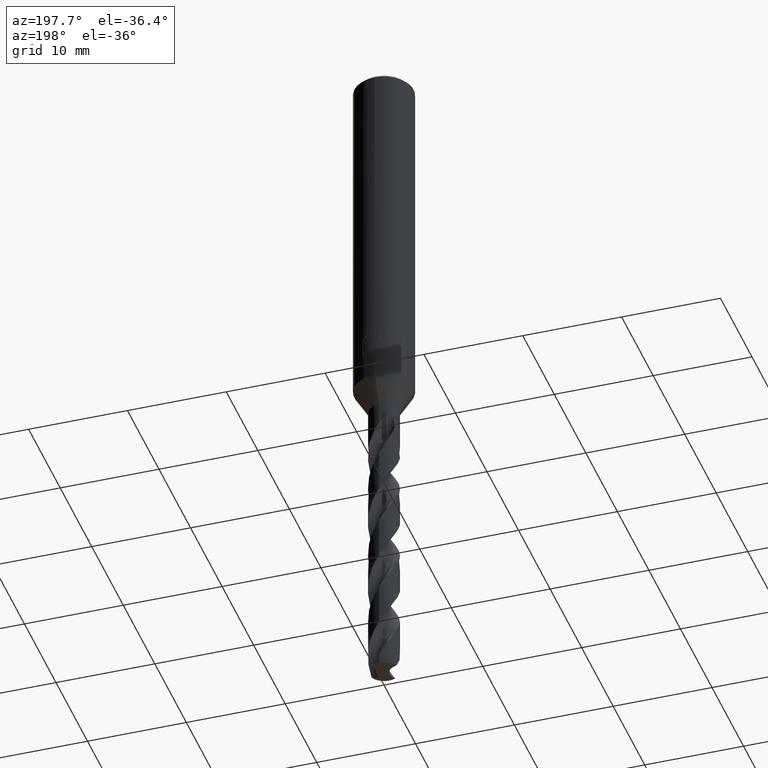
[diagram: clean part render]
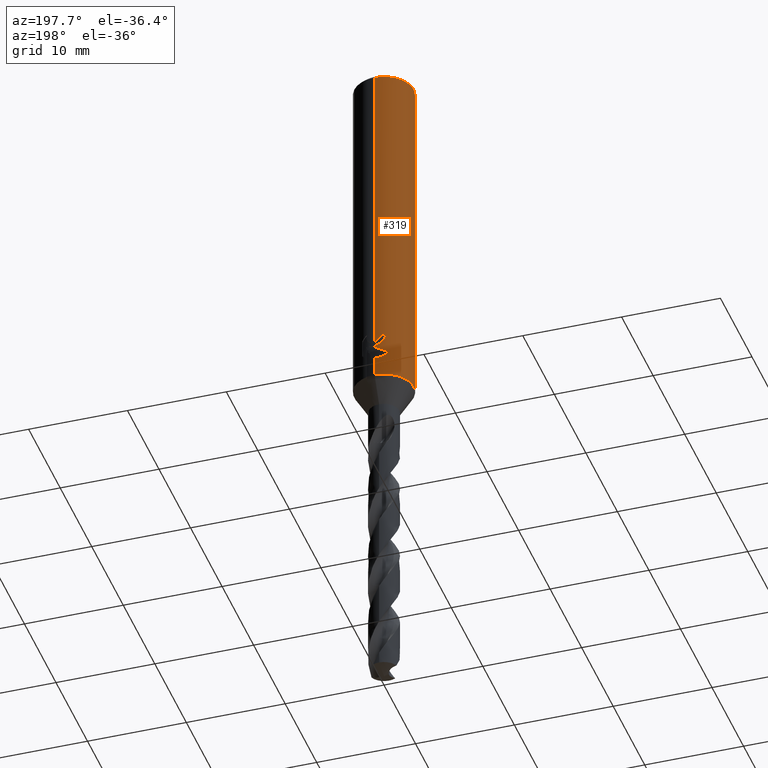
[diagram: same view with one face highlighted and labeled with its STEP entity id]
A machine part, auxiliary view. The second image highlights one B-rep face of the part: STEP entity #319.
In plain terms, the highlighted cylindrical surface (edge-blend (fillet) strip) has radius 3 mm, axis along (-0, -0, 1).
Its self-contained STEP definition (entity closure, byte-faithful):
#311=VERTEX_POINT('',#845);
#319=ADVANCED_FACE('',(#854),#855,.T.);
#325=VERTEX_POINT('',#861);
#333=EDGE_CURVE('',#357,#583,#869,.T.);
#357=VERTEX_POINT('',#896);
#381=EDGE_CURVE('',#617,#729,#922,.T.);
#397=VERTEX_POINT('',#941);
#401=EDGE_CURVE('',#607,#515,#945,.T.);
#439=VERTEX_POINT('',#987);
#465=EDGE_CURVE('',#311,#439,#1015,.T.);
#515=VERTEX_POINT('',#1070);
#521=EDGE_CURVE('',#439,#325,#1077,.T.);
#531=VERTEX_POINT('',#1089);
#551=EDGE_CURVE('',#397,#531,#1111,.T.);
#553=VERTEX_POINT('',#1113);
#583=VERTEX_POINT('',#1145);
#607=VERTEX_POINT('',#1170);
#611=EDGE_CURVE('',#397,#607,#1175,.T.);
#617=VERTEX_POINT('',#1181);
#639=EDGE_CURVE('',#729,#553,#1205,.T.);
#641=EDGE_CURVE('',#325,#531,#1207,.T.);
#663=EDGE_CURVE('',#583,#617,#1230,.T.);
#719=EDGE_CURVE('',#553,#311,#1289,.T.);
#721=EDGE_CURVE('',#515,#357,#1291,.T.);
#729=VERTEX_POINT('',#1300);
#845=CARTESIAN_POINT('',(-3.67366600472444E-016,3.0,-32.7128911336578));
#854=FACE_OUTER_BOUND('',#1610,.T.);
#855=CYLINDRICAL_SURFACE('',#1611,3.0);
#861=CARTESIAN_POINT('',(-2.46407913303377E-016,3.0,-34.0310253601033));
#869=B_SPLINE_CURVE_WITH_KNOTS('',3,(#1782,#1783,#1784,#1785,#1786,#1787,#1788,#1789,#1790,#1791,#1792,#1793,#1794,#1795,#1796,#1797,#1798,#1799,#1800,#1801,#1802,#1803,#1804,#1805,#1806,#1807,#1808),.UNSPECIFIED.,.F.,.F.,(4,2,3,2,2,2,2,2,2,2,2,2,4),(-0.54422824842136,-0.27211412421068,0.0,0.272114124210678,0.544228248421357,0.817906359646673,1.09158447087199,1.36255924571499,1.63353402055798,1.90530456554772,2.17707511053746,2.4488456555272,2.72061620051693),.UNSPECIFIED.);
#896=CARTESIAN_POINT('',(-1.20768269592175E-015,3.0,-32.0232688117743));
#922=CIRCLE('',#2190,3.0);
#941=CARTESIAN_POINT('',(3.67381906146713E-016,-3.0,-36.0));
#945=CIRCLE('',#2216,3.0);
#987=CARTESIAN_POINT('',(-1.337052752443,2.68557069115386,-33.3720803908795));
#1015=ELLIPSE('',#3927,3.34478529612858,3.0);
#1070=CARTESIAN_POINT('',(0.0,3.0,-0.399999999999999));
#1077=B_SPLINE_CURVE_WITH_KNOTS('',3,(#4434,#4435,#4436,#4437,#4438,#4439,#4440,#4441,#4442,#4443,#4444,#4445,#4446,#4447,#4448,#4449),.UNSPECIFIED.,.F.,.F.,(4,2,2,2,2,2,2,4),(5.66023402257373,6.29060333517104,6.60504483258975,6.91948633000846,7.23392782742717,7.54836932484587,7.86141901111221,8.17446869737855),.UNSPECIFIED.);
#1089=CARTESIAN_POINT('',(0.0,3.0,-36.0));
#1111=CIRCLE('',#4966,3.0);
#1113=CARTESIAN_POINT('',(-2.06254272401587E-016,3.0,-32.5000801551881));
#1145=CARTESIAN_POINT('',(-0.486378944383045,2.96031003823262,-31.6432837483006));
#1170=CARTESIAN_POINT('',(3.67381906146713E-016,-3.0,-0.399999999999999));
#1175=LINE('',#5583,#5584);
#1181=CARTESIAN_POINT('',(-0.562333990228013,2.94682549253162,-31.3171221986971));
#1205=B_SPLINE_CURVE_WITH_KNOTS('',3,(#5775,#5776,#5777,#5778,#5779,#5780,#5781,#5782,#5783,#5784,#5785,#5786,#5787,#5788),.UNSPECIFIED.,.F.,.F.,(4,2,2,2,2,2,4),(3.16026050654945,3.61086409539206,4.06146768423468,4.51207127307729,4.95991823802074,5.40776520296419,5.86282890530594),.UNSPECIFIED.);
#1207=LINE('',#5791,#5792);
#1230=B_SPLINE_CURVE_WITH_KNOTS('',3,(#5883,#5884,#5885,#5886,#5887,#5888,#5889,#5890,#5891,#5892,#5893,#5894,#5895,#5896,#5897,#5898,#5899,#5900,#5901,#5902,#5903,#5904,#5905,#5906,#5907,#5908,#5909),.UNSPECIFIED.,.F.,.F.,(4,2,3,2,2,2,2,2,2,2,2,2,4),(-0.54422824842136,-0.27211412421068,0.0,0.272114124210678,0.544228248421357,0.817906359646673,1.09158447087199,1.36255924571499,1.63353402055798,1.90530456554772,2.17707511053746,2.4488456555272,2.72061620051693),.UNSPECIFIED.);
#1289=LINE('',#6465,#6466);
#1291=LINE('',#6469,#6470);
#1300=CARTESIAN_POINT('',(-1.0350734039088,2.81578107254819,-31.3171221986971));
#1610=EDGE_LOOP('',(#7298,#7299,#7300,#7301,#7302,#7303,#7304,#7305,#7306,#7307,#7308,#7309));
#1611=AXIS2_PLACEMENT_3D('',#7310,#7311,#7312);
#1782=CARTESIAN_POINT('',(0.665621182276714,2.92522622060321,-30.8140957881762));
#1783=CARTESIAN_POINT('',(0.728850563417096,2.91083867849353,-30.877518087557));
#1784=CARTESIAN_POINT('',(0.783900459387161,2.89602337967411,-30.9578702196133));
#1785=CARTESIAN_POINT('',(0.857188692916628,2.87518328740958,-31.1345580124299));
#1786=CARTESIAN_POINT('',(0.875400981188567,2.86943777108584,-31.2309373045166));
#1787=CARTESIAN_POINT('',(0.875400981188567,2.86943777108584,-31.3216420125868));
#1788=CARTESIAN_POINT('',(0.875400981188567,2.86943777108584,-31.412346720657));
#1789=CARTESIAN_POINT('',(0.857188692916629,2.87518328740958,-31.5087260127437));
#1790=CARTESIAN_POINT('',(0.783900459387161,2.89602337967411,-31.6854138055602));
#1791=CARTESIAN_POINT('',(0.728850563417096,2.91083867849353,-31.7657659376165));
#1792=CARTESIAN_POINT('',(0.60202838769231,2.93969645569731,-31.8929750586276));
#1793=CARTESIAN_POINT('',(0.5214778595293,2.95568533572518,-31.9483797636259));
#1794=CARTESIAN_POINT('',(0.34429909105015,2.98152194310932,-32.0221641076746));
#1795=CARTESIAN_POINT('',(0.247628172090375,2.99115403786358,-32.0405166027747));
#1796=CARTESIAN_POINT('',(0.0663244946631877,3.00062654348629,-32.0405166027747));
#1797=CARTESIAN_POINT('',(-0.0299285908853379,3.00115720326599,-32.0224875186921));
#1798=CARTESIAN_POINT('',(-0.206881310600538,2.99416773126077,-31.949244373347));
#1799=CARTESIAN_POINT('',(-0.287593937381961,2.98687212067831,-31.8940404490632));
#1800=CARTESIAN_POINT('',(-0.415200117492864,2.97182576996222,-31.7666805419979));
#1801=CARTESIAN_POINT('',(-0.470604049431396,2.96309385107775,-31.6859121102136));
#1802=CARTESIAN_POINT('',(-0.544183869965539,2.95046729924835,-31.5086992019516));
#1803=CARTESIAN_POINT('',(-0.562348199187247,2.94682278104247,-31.41223219425));
#1804=CARTESIAN_POINT('',(-0.562348199187247,2.94682278104247,-31.2310518309235));
#1805=CARTESIAN_POINT('',(-0.54418386996554,2.95046729924835,-31.134584823222));
#1806=CARTESIAN_POINT('',(-0.4706040494314,2.96309385107775,-30.95737191496));
#1807=CARTESIAN_POINT('',(-0.415200117492863,2.97182576996222,-30.8766034831756));
#1808=CARTESIAN_POINT('',(-0.351303479704285,2.97935997575782,-30.812830162452));
#2190=AXIS2_PLACEMENT_3D('',#7398,#7399,#7400);
#2216=AXIS2_PLACEMENT_3D('',#7426,#7427,#7428);
#3927=AXIS2_PLACEMENT_3D('',#7502,#7503,#7504);
#4434=CARTESIAN_POINT('',(-1.53050642192579,2.58022287650581,-33.0319811255889));
#4435=CARTESIAN_POINT('',(-1.44691631248335,2.62980577312329,-33.2314887010961));
#4436=CARTESIAN_POINT('',(-1.32276760444366,2.69707077181617,-33.4113258593841));
#4437=CARTESIAN_POINT('',(-1.10973155101076,2.78826898930335,-33.6245951706909));
#4438=CARTESIAN_POINT('',(-1.02948996220254,2.81934349084513,-33.6916117853674));
#4439=CARTESIAN_POINT('',(-0.853932698223484,2.87738531454781,-33.8105216600777));
#4440=CARTESIAN_POINT('',(-0.758609991487907,2.90431263574779,-33.8624240602539));
#4441=CARTESIAN_POINT('',(-0.558469552260235,2.94934446690523,-33.9464055954533));
#4442=CARTESIAN_POINT('',(-0.453457041446381,2.96746268462387,-33.9785511641911));
#4443=CARTESIAN_POINT('',(-0.240810292537893,2.99223469602914,-34.0209924679526));
#4444=CARTESIAN_POINT('',(-0.133171317626829,2.99887501234033,-34.0312723335086));
#4445=CARTESIAN_POINT('',(0.0759830626177195,3.00085245803086,-34.0312723335086));
#4446=CARTESIAN_POINT('',(0.183273473896684,2.99629272230549,-34.0210815541729));
#4447=CARTESIAN_POINT('',(0.39543915272815,2.97573303917486,-33.9788816901513));
#4448=CARTESIAN_POINT('',(0.500318639064909,2.95974677710468,-33.9468871509919));
#4449=CARTESIAN_POINT('',(0.600330982089903,2.93932011049205,-33.9050368602192));
#4966=AXIS2_PLACEMENT_3D('',#7610,#7611,#7612);
#5583=CARTESIAN_POINT('',(3.67381906146713E-016,-3.0,-18.2));
#5584=VECTOR('',#7658,1.0);
#5775=CARTESIAN_POINT('',(-0.944028754947609,2.84759718180646,-30.87109591768));
#5776=CARTESIAN_POINT('',(-1.00479265183033,2.82745289805341,-31.0168616503562));
#5777=CARTESIAN_POINT('',(-1.03510901790186,2.81576798068631,-31.1761006644519));
#5778=CARTESIAN_POINT('',(-1.03510901790186,2.81576798068631,-31.4765030570137));
#5779=CARTESIAN_POINT('',(-1.00479265183033,2.82745289805341,-31.6357420711094));
#5780=CARTESIAN_POINT('',(-0.88326485806506,2.86774146555976,-31.9272735364618));
#5781=CARTESIAN_POINT('',(-0.792109261194285,2.89554580131596,-32.0596991578702));
#5782=CARTESIAN_POINT('',(-0.582867737485067,2.94478284423827,-32.2682275153448));
#5783=CARTESIAN_POINT('',(-0.450640829386874,2.96956027684007,-32.358826497016));
#5784=CARTESIAN_POINT('',(-0.159819744133953,2.99930375982357,-32.4794282329782));
#5785=CARTESIAN_POINT('',(-0.00114290335869099,3.00371168811663,-32.5093686300866));
#5786=CARTESIAN_POINT('',(0.299461057962613,2.98886806232847,-32.5093686300866));
#5787=CARTESIAN_POINT('',(0.459264276215476,2.96836791045541,-32.4785566268234));
#5788=CARTESIAN_POINT('',(0.604975334200916,2.93836771779988,-32.4175314011172));
#5791=CARTESIAN_POINT('',(-3.67381906146713E-016,3.0,-18.2));
#5792=VECTOR('',#7684,1.0);
#5883=CARTESIAN_POINT('',(0.665621182276714,2.92522622060321,-30.8140957881762));
#5884=CARTESIAN_POINT('',(0.728850563417096,2.91083867849353,-30.877518087557));
#5885=CARTESIAN_POINT('',(0.783900459387161,2.89602337967411,-30.9578702196133));
#5886=CARTESIAN_POINT('',(0.857188692916628,2.87518328740958,-31.1345580124299));
#5887=CARTESIAN_POINT('',(0.875400981188567,2.86943777108584,-31.2309373045166));
#5888=CARTESIAN_POINT('',(0.875400981188567,2.86943777108584,-31.3216420125868));
#5889=CARTESIAN_POINT('',(0.875400981188567,2.86943777108584,-31.412346720657));
#5890=CARTESIAN_POINT('',(0.857188692916629,2.87518328740958,-31.5087260127437));
#5891=CARTESIAN_POINT('',(0.783900459387161,2.89602337967411,-31.6854138055602));
#5892=CARTESIAN_POINT('',(0.728850563417096,2.91083867849353,-31.7657659376165));
#5893=CARTESIAN_POINT('',(0.60202838769231,2.93969645569731,-31.8929750586276));
#5894=CARTESIAN_POINT('',(0.5214778595293,2.95568533572518,-31.9483797636259));
#5895=CARTESIAN_POINT('',(0.34429909105015,2.98152194310932,-32.0221641076746));
#5896=CARTESIAN_POINT('',(0.247628172090375,2.99115403786358,-32.0405166027747));
#5897=CARTESIAN_POINT('',(0.0663244946631877,3.00062654348629,-32.0405166027747));
#5898=CARTESIAN_POINT('',(-0.0299285908853379,3.00115720326599,-32.0224875186921));
#5899=CARTESIAN_POINT('',(-0.206881310600538,2.99416773126077,-31.949244373347));
#5900=CARTESIAN_POINT('',(-0.287593937381961,2.98687212067831,-31.8940404490632));
#5901=CARTESIAN_POINT('',(-0.415200117492864,2.97182576996222,-31.7666805419979));
#5902=CARTESIAN_POINT('',(-0.470604049431396,2.96309385107775,-31.6859121102136));
#5903=CARTESIAN_POINT('',(-0.544183869965539,2.95046729924835,-31.5086992019516));
#5904=CARTESIAN_POINT('',(-0.562348199187247,2.94682278104247,-31.41223219425));
#5905=CARTESIAN_POINT('',(-0.562348199187247,2.94682278104247,-31.2310518309235));
#5906=CARTESIAN_POINT('',(-0.54418386996554,2.95046729924835,-31.134584823222));
#5907=CARTESIAN_POINT('',(-0.4706040494314,2.96309385107775,-30.95737191496));
#5908=CARTESIAN_POINT('',(-0.415200117492863,2.97182576996222,-30.8766034831756));
#5909=CARTESIAN_POINT('',(-0.351303479704285,2.97935997575782,-30.812830162452));
#6465=CARTESIAN_POINT('',(-3.67381906146713E-016,3.0,-18.2));
#6466=VECTOR('',#7737,1.0);
#6469=CARTESIAN_POINT('',(-3.67381906146713E-016,3.0,-18.2));
#6470=VECTOR('',#7738,1.0);
#7298=ORIENTED_EDGE('',*,*,#721,.T.);
#7299=ORIENTED_EDGE('',*,*,#333,.T.);
#7300=ORIENTED_EDGE('',*,*,#663,.T.);
#7301=ORIENTED_EDGE('',*,*,#381,.T.);
#7302=ORIENTED_EDGE('',*,*,#639,.T.);
#7303=ORIENTED_EDGE('',*,*,#719,.T.);
#7304=ORIENTED_EDGE('',*,*,#465,.T.);
#7305=ORIENTED_EDGE('',*,*,#521,.T.);
#7306=ORIENTED_EDGE('',*,*,#641,.T.);
#7307=ORIENTED_EDGE('',*,*,#551,.F.);
#7308=ORIENTED_EDGE('',*,*,#611,.T.);
#7309=ORIENTED_EDGE('',*,*,#401,.T.);
#7310=CARTESIAN_POINT('',(0.0,0.0,-18.2));
#7311=DIRECTION('',(-0.0,-0.0,1.0));
#7312=DIRECTION('',(0.0,1.0,0.0));
#7398=CARTESIAN_POINT('',(0.0,0.0,-31.3171221986971));
#7399=DIRECTION('',(0.0,-0.0,1.0));
#7400=DIRECTION('',(0.0,1.0,0.0));
#7426=CARTESIAN_POINT('',(0.0,0.0,-0.399999999999999));
#7427=DIRECTION('',(0.0,0.0,-1.0));
#7428=DIRECTION('',(0.0,1.0,0.0));
#7502=CARTESIAN_POINT('',(0.0,0.0,-32.7128911336578));
#7503=DIRECTION('',(-0.442195774284071,0.0,0.896918556617774));
#7504=DIRECTION('',(0.896918556617774,-0.0,0.442195774284071));
#7610=CARTESIAN_POINT('',(0.0,0.0,-36.0));
#7611=DIRECTION('',(0.0,0.0,-1.0));
#7612=DIRECTION('',(0.0,1.0,0.0));
#7658=DIRECTION('',(-0.0,-0.0,1.0));
#7684=DIRECTION('',(0.0,0.0,-1.0));
#7737=DIRECTION('',(0.0,0.0,-1.0));
#7738=DIRECTION('',(0.0,0.0,-1.0));